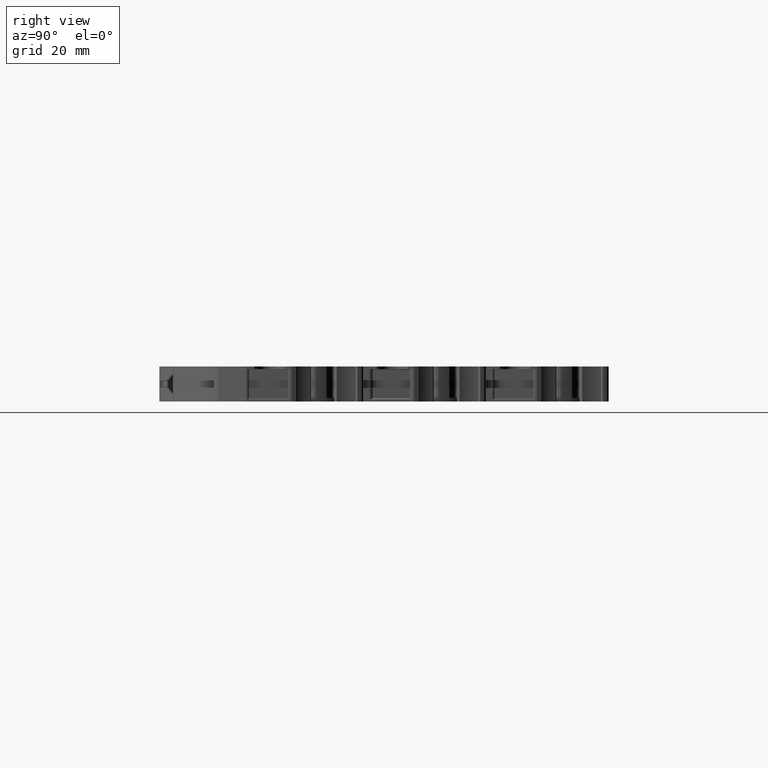
[diagram: clean part render]
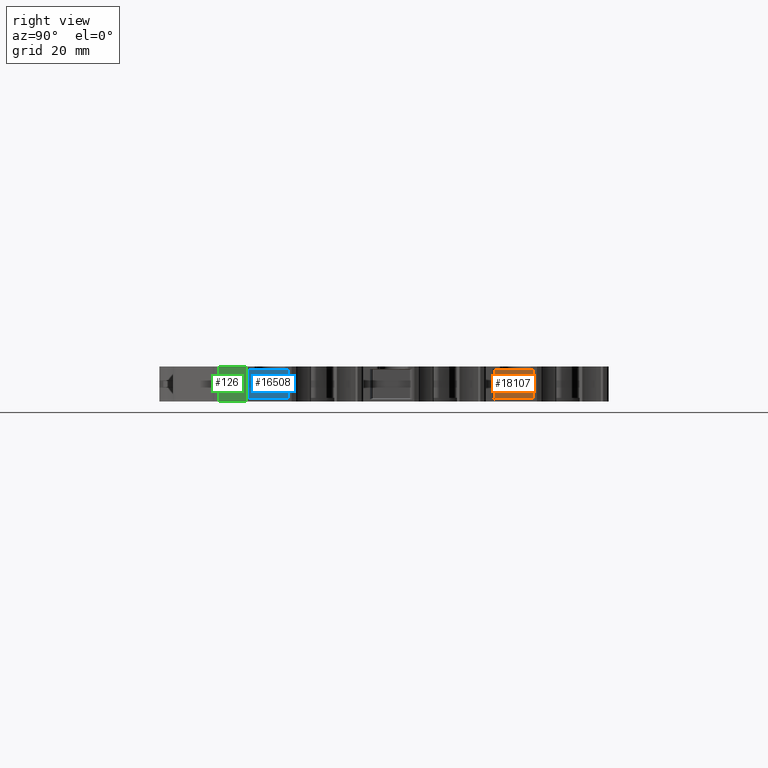
[diagram: same view with three faces highlighted in distinct colors, each labeled with its STEP entity id]
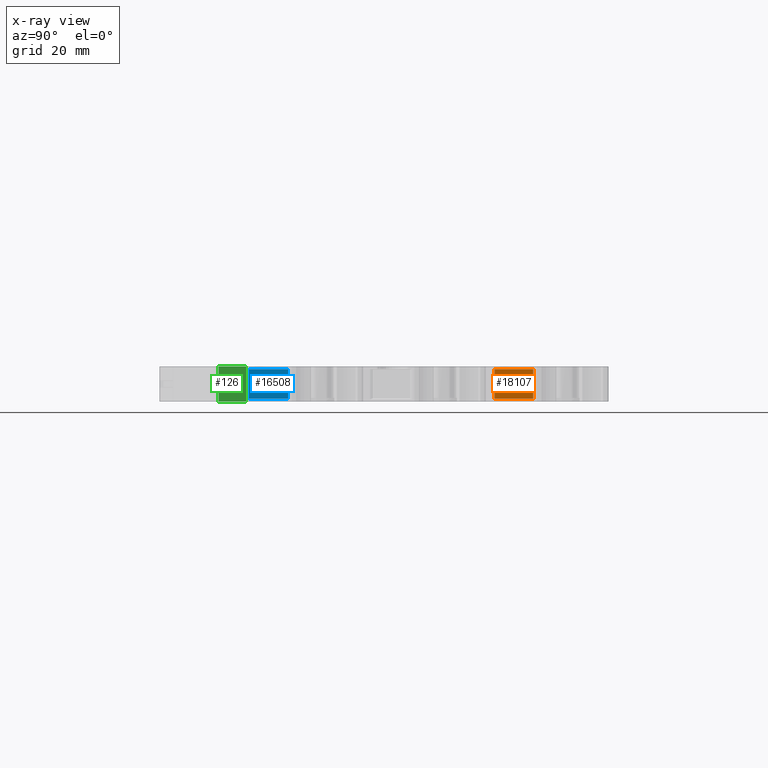
[diagram: x-ray of the same camera — body ghosted, the three highlighted faces saturated]
A machine part, right view with three faces highlighted in distinct colors.
The next image is the same camera in x-ray (body ghosted, the three faces saturated) — at least one of them is partly hidden behind the body in this view.
Their STEP definitions:

[orange] entity #18107 — the highlighted planar face has unit normal (1, 0, 0).
#982 = EDGE_CURVE ( 'NONE', #29119, #27543, #23558, .T. ) ;
#1322 = CARTESIAN_POINT ( 'NONE',  ( 1277.720590423147996, 799.3323108922249958, 5.389933282471298881 ) ) ;
#7182 = ORIENTED_EDGE ( 'NONE', *, *, #982, .T. ) ;
#7741 = PLANE ( 'NONE',  #11171 ) ;
#9723 = ORIENTED_EDGE ( 'NONE', *, *, #35506, .T. ) ;
#11171 = AXIS2_PLACEMENT_3D ( 'NONE', #14122, #37114, #28460 ) ;
#12520 = CARTESIAN_POINT ( 'NONE',  ( 1277.720590423147996, 811.0114375126360073, 5.389933282471309539 ) ) ;
#12822 = DIRECTION ( 'NONE',  ( 0.000000000000000000, 1.000000000000000000, -2.403835716317895691E-16 ) ) ;
#13525 = EDGE_LOOP ( 'NONE', ( #18057, #7182, #18881, #9723 ) ) ;
#14122 = CARTESIAN_POINT ( 'NONE',  ( 1277.720590423147996, 812.8638231110666084, 63.13692519303234008 ) ) ;
#15043 = VECTOR ( 'NONE', #16624, 1000.000000000000000 ) ;
#16350 = VECTOR ( 'NONE', #12822, 1000.000000000000000 ) ;
#16624 = DIRECTION ( 'NONE',  ( 0.000000000000000000, -1.000000000000000000, -2.403835716317895691E-16 ) ) ;
#17369 = VERTEX_POINT ( 'NONE', #12520 ) ;
#18057 = ORIENTED_EDGE ( 'NONE', *, *, #29589, .F. ) ;
#18107 = ADVANCED_FACE ( 'NONE', ( #25258 ), #7741, .T. ) ;
#18782 = VECTOR ( 'NONE', #30639, 1000.000000000000000 ) ;
#18881 = ORIENTED_EDGE ( 'NONE', *, *, #28160, .F. ) ;
#21278 = CARTESIAN_POINT ( 'NONE',  ( 1277.720590423147996, 804.5523105168468874, 14.64908674654505916 ) ) ;
#21456 = VECTOR ( 'NONE', #35039, 1000.000000000000000 ) ;
#23558 = LINE ( 'NONE', #21278, #21456 ) ;
#24792 = CARTESIAN_POINT ( 'NONE',  ( 1277.720590423147996, 811.0114375126357800, 14.64908674654505916 ) ) ;
#25258 = FACE_OUTER_BOUND ( 'NONE', #13525, .T. ) ;
#27543 = VERTEX_POINT ( 'NONE', #34276 ) ;
#27562 = CARTESIAN_POINT ( 'NONE',  ( 1277.720590423147996, 799.3323108922249958, 0.4600667175287062594 ) ) ;
#28160 = EDGE_CURVE ( 'NONE', #31553, #27543, #36579, .T. ) ;
#28460 = DIRECTION ( 'NONE',  ( 0.000000000000000000, 0.000000000000000000, -1.000000000000000000 ) ) ;
#28966 = CARTESIAN_POINT ( 'NONE',  ( 1277.720590423147996, 804.5523105168468874, 5.389933282471316645 ) ) ;
#29119 = VERTEX_POINT ( 'NONE', #28966 ) ;
#29589 = EDGE_CURVE ( 'NONE', #29119, #17369, #33155, .T. ) ;
#30639 = DIRECTION ( 'NONE',  ( -0.000000000000000000, 0.000000000000000000, 1.000000000000000000 ) ) ;
#31553 = VERTEX_POINT ( 'NONE', #36757 ) ;
#33155 = LINE ( 'NONE', #1322, #16350 ) ;
#33824 = LINE ( 'NONE', #24792, #18782 ) ;
#34276 = CARTESIAN_POINT ( 'NONE',  ( 1277.720590423147996, 804.5523105168468874, 0.4600667175286830002 ) ) ;
#35039 = DIRECTION ( 'NONE',  ( 0.000000000000000000, 0.000000000000000000, -1.000000000000000000 ) ) ;
#35506 = EDGE_CURVE ( 'NONE', #31553, #17369, #33824, .T. ) ;
#36579 = LINE ( 'NONE', #27562, #15043 ) ;
#36757 = CARTESIAN_POINT ( 'NONE',  ( 1277.720590423147996, 811.0114375126360073, 0.4600667175286977661 ) ) ;
#37114 = DIRECTION ( 'NONE',  ( 1.000000000000000000, 0.000000000000000000, 0.000000000000000000 ) ) ;

[blue] entity #16508 — the highlighted planar face has unit normal (1, 0, 0).
#314 = ORIENTED_EDGE ( 'NONE', *, *, #11775, .F. ) ;
#2665 = VERTEX_POINT ( 'NONE', #36292 ) ;
#3185 = CARTESIAN_POINT ( 'NONE',  ( 1315.586700613209587, 770.0703423201184705, 5.396323147020455124 ) ) ;
#3378 = DIRECTION ( 'NONE',  ( 1.000000000000000000, 0.000000000000000000, 0.000000000000000000 ) ) ;
#3571 = DIRECTION ( 'NONE',  ( 0.000000000000000000, 0.000000000000000000, -1.000000000000000000 ) ) ;
#3927 = FACE_OUTER_BOUND ( 'NONE', #24837, .T. ) ;
#5434 = CARTESIAN_POINT ( 'NONE',  ( 1315.586700613209587, 758.3591882789090732, 5.396323147020471112 ) ) ;
#5795 = LINE ( 'NONE', #5434, #21863 ) ;
#6189 = CARTESIAN_POINT ( 'NONE',  ( 1315.586700613209587, 771.7478503517530726, 63.13692519303234008 ) ) ;
#6868 = VERTEX_POINT ( 'NONE', #17533 ) ;
#8472 = DIRECTION ( 'NONE',  ( 0.000000000000000000, 0.000000000000000000, 1.000000000000000000 ) ) ;
#8766 = VECTOR ( 'NONE', #30626, 1000.000000000000000 ) ;
#11775 = EDGE_CURVE ( 'NONE', #15124, #2665, #19326, .T. ) ;
#12039 = DIRECTION ( 'NONE',  ( 0.000000000000000000, -1.000000000000000000, -2.403835716317895691E-16 ) ) ;
#13456 = CARTESIAN_POINT ( 'NONE',  ( 1315.586700613209587, 763.5471604827329202, 0.4536768529795501270 ) ) ;
#14404 = EDGE_CURVE ( 'NONE', #6868, #15124, #5795, .T. ) ;
#15124 = VERTEX_POINT ( 'NONE', #3185 ) ;
#16026 = AXIS2_PLACEMENT_3D ( 'NONE', #6189, #3378, #3571 ) ;
#16508 = ADVANCED_FACE ( 'NONE', ( #3927 ), #35021, .T. ) ;
#17312 = DIRECTION ( 'NONE',  ( 0.000000000000000000, 1.000000000000000000, -2.403835716317895691E-16 ) ) ;
#17533 = CARTESIAN_POINT ( 'NONE',  ( 1315.586700613209587, 763.5471604827328065, 5.396323147020459565 ) ) ;
#18542 = VECTOR ( 'NONE', #8472, 1000.000000000000000 ) ;
#19326 = LINE ( 'NONE', #30812, #8766 ) ;
#21863 = VECTOR ( 'NONE', #17312, 1000.000000000000000 ) ;
#22208 = CARTESIAN_POINT ( 'NONE',  ( 1315.586700613209587, 763.5471604827330339, 1.275000000000000133 ) ) ;
#22555 = ORIENTED_EDGE ( 'NONE', *, *, #34468, .F. ) ;
#24837 = EDGE_LOOP ( 'NONE', ( #22555, #314, #27668, #26094 ) ) ;
#24900 = CARTESIAN_POINT ( 'NONE',  ( 1315.586700613209587, 758.3591882789090732, 0.4536768529795336957 ) ) ;
#26094 = ORIENTED_EDGE ( 'NONE', *, *, #31983, .F. ) ;
#27668 = ORIENTED_EDGE ( 'NONE', *, *, #14404, .F. ) ;
#28925 = VECTOR ( 'NONE', #12039, 1000.000000000000000 ) ;
#30570 = LINE ( 'NONE', #24900, #28925 ) ;
#30626 = DIRECTION ( 'NONE',  ( 0.000000000000000000, 0.000000000000000000, -1.000000000000000000 ) ) ;
#30812 = CARTESIAN_POINT ( 'NONE',  ( 1315.586700613209587, 770.0703423201180158, 1.275000000000000133 ) ) ;
#31983 = EDGE_CURVE ( 'NONE', #34067, #6868, #34274, .T. ) ;
#34067 = VERTEX_POINT ( 'NONE', #13456 ) ;
#34274 = LINE ( 'NONE', #22208, #18542 ) ;
#34468 = EDGE_CURVE ( 'NONE', #2665, #34067, #30570, .T. ) ;
#35021 = PLANE ( 'NONE',  #16026 ) ;
#36292 = CARTESIAN_POINT ( 'NONE',  ( 1315.586700613209587, 770.0703423201182432, 0.4536768529795619509 ) ) ;

[green] entity #126 — the highlighted planar face has unit normal (0.9763, -0.2164, 0).
#126 = ADVANCED_FACE ( 'NONE', ( #30080 ), #30426, .T. ) ;
#1733 = ORIENTED_EDGE ( 'NONE', *, *, #19867, .F. ) ;
#1941 = LINE ( 'NONE', #10076, #29313 ) ;
#2072 = VERTEX_POINT ( 'NONE', #2332 ) ;
#2332 = CARTESIAN_POINT ( 'NONE',  ( 1317.848591866922106, 758.4856394643659314, 8.673617379884039416E-16 ) ) ;
#4930 = VECTOR ( 'NONE', #24451, 999.9999999999998863 ) ;
#8961 = EDGE_LOOP ( 'NONE', ( #1733, #32225, #18270, #12460 ) ) ;
#9240 = CARTESIAN_POINT ( 'NONE',  ( 1317.848591866922106, 758.4856394643659314, 5.850000000000000533 ) ) ;
#9413 = CARTESIAN_POINT ( 'NONE',  ( 1318.661845460868108, 762.1539893662089753, 8.673617379884039416E-16 ) ) ;
#10076 = CARTESIAN_POINT ( 'NONE',  ( 1318.661845460868108, 762.1539893662089753, 5.850000000000000533 ) ) ;
#10613 = DIRECTION ( 'NONE',  ( 0.2164396139380194706, 0.9762960071199519030, 0.000000000000000000 ) ) ;
#11279 = VERTEX_POINT ( 'NONE', #22707 ) ;
#12460 = ORIENTED_EDGE ( 'NONE', *, *, #30013, .T. ) ;
#13699 = DIRECTION ( 'NONE',  ( 0.000000000000000000, 0.000000000000000000, -1.000000000000000000 ) ) ;
#14819 = CARTESIAN_POINT ( 'NONE',  ( 1317.848591866922106, 758.4856394643659314, 8.673617379884039416E-16 ) ) ;
#15026 = VECTOR ( 'NONE', #26128, 1000.000000000000000 ) ;
#16127 = CARTESIAN_POINT ( 'NONE',  ( 1318.661845460868108, 762.1539893662089753, 8.673617379884039416E-16 ) ) ;
#16780 = AXIS2_PLACEMENT_3D ( 'NONE', #16127, #32888, #33075 ) ;
#18270 = ORIENTED_EDGE ( 'NONE', *, *, #33716, .F. ) ;
#18797 = CARTESIAN_POINT ( 'NONE',  ( 1318.861279606413973, 763.0535786624479897, 8.673617379884039416E-16 ) ) ;
#18798 = EDGE_CURVE ( 'NONE', #31700, #11279, #1941, .T. ) ;
#18974 = LINE ( 'NONE', #18797, #35956 ) ;
#19867 = EDGE_CURVE ( 'NONE', #11279, #32066, #18974, .T. ) ;
#22707 = CARTESIAN_POINT ( 'NONE',  ( 1318.861279606413973, 763.0535786624479897, 5.850000000000000533 ) ) ;
#24451 = DIRECTION ( 'NONE',  ( 0.2164396139380194706, 0.9762960071199519030, 0.000000000000000000 ) ) ;
#25983 = CARTESIAN_POINT ( 'NONE',  ( 1318.861279606413973, 763.0535786624479897, 8.673617379884039416E-16 ) ) ;
#26128 = DIRECTION ( 'NONE',  ( 0.000000000000000000, 0.000000000000000000, 1.000000000000000000 ) ) ;
#27290 = LINE ( 'NONE', #9413, #4930 ) ;
#29313 = VECTOR ( 'NONE', #10613, 999.9999999999998863 ) ;
#30013 = EDGE_CURVE ( 'NONE', #2072, #32066, #27290, .T. ) ;
#30080 = FACE_OUTER_BOUND ( 'NONE', #8961, .T. ) ;
#30426 = PLANE ( 'NONE',  #16780 ) ;
#31700 = VERTEX_POINT ( 'NONE', #9240 ) ;
#32066 = VERTEX_POINT ( 'NONE', #25983 ) ;
#32138 = LINE ( 'NONE', #14819, #15026 ) ;
#32225 = ORIENTED_EDGE ( 'NONE', *, *, #18798, .F. ) ;
#32888 = DIRECTION ( 'NONE',  ( 0.9762960071199519030, -0.2164396139380194706, 0.000000000000000000 ) ) ;
#33075 = DIRECTION ( 'NONE',  ( 0.2164396139380194428, 0.9762960071199517920, 0.000000000000000000 ) ) ;
#33716 = EDGE_CURVE ( 'NONE', #2072, #31700, #32138, .T. ) ;
#35956 = VECTOR ( 'NONE', #13699, 1000.000000000000000 ) ;